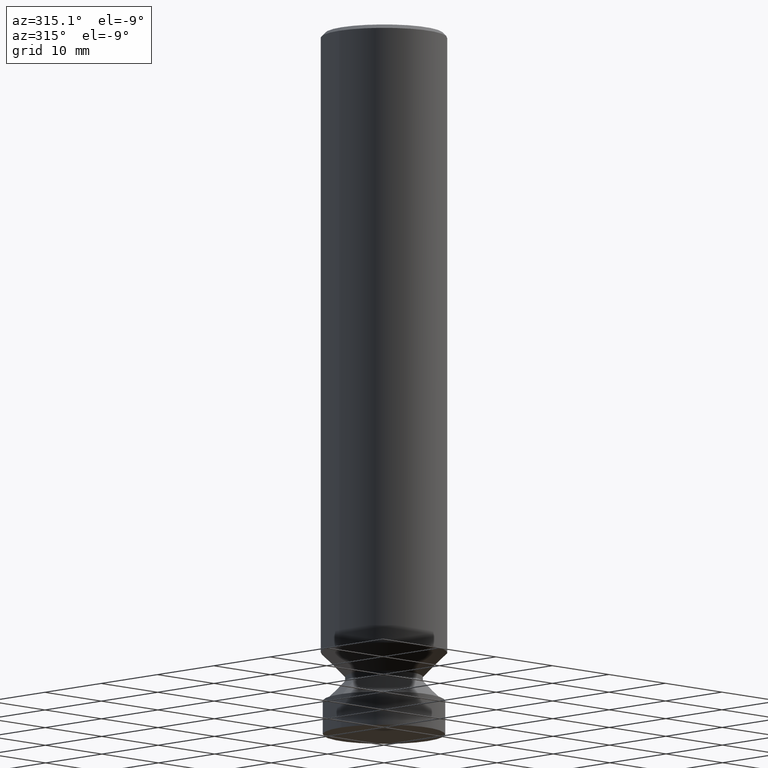
[diagram: clean part render]
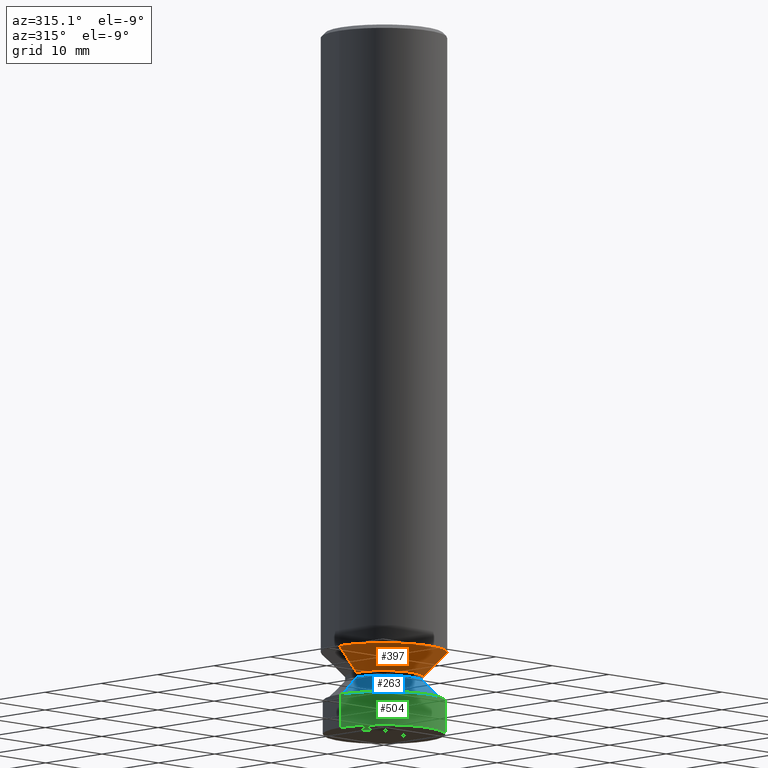
[diagram: same view with three faces highlighted in distinct colors, each labeled with its STEP entity id]
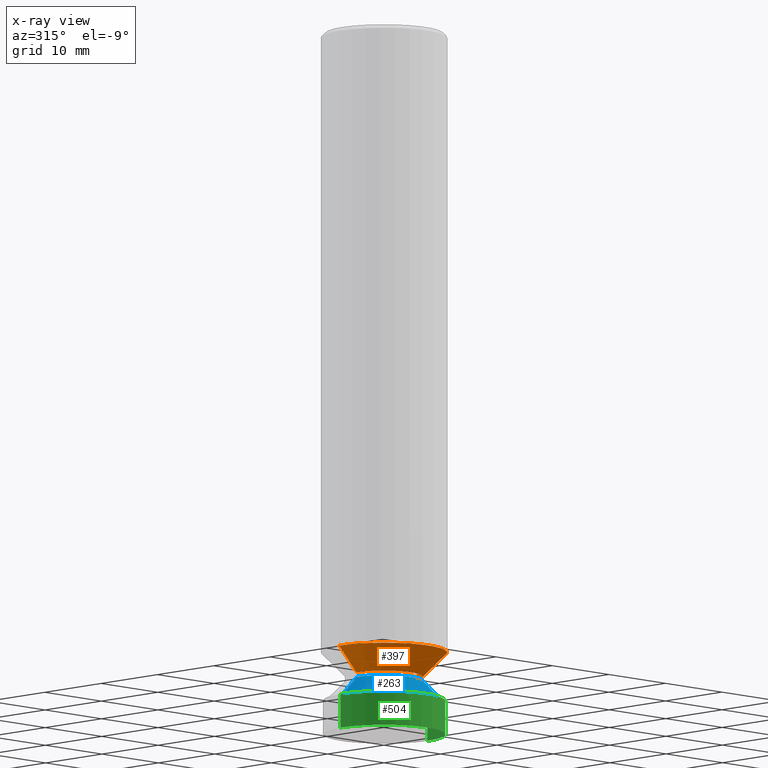
[diagram: x-ray of the same camera — body ghosted, the three highlighted faces saturated]
A machine part, auxiliary view with three faces highlighted in distinct colors.
The next image is the same camera in x-ray (body ghosted, the three faces saturated) — at least one of them is partly hidden behind the body in this view.
Their STEP definitions:

[orange] entity #397 — the highlighted conical surface has half-angle 45 deg.
#10 = LINE ( 'NONE', #708, #456 ) ;
#22 = VERTEX_POINT ( 'NONE', #438 ) ;
#45 = CARTESIAN_POINT ( 'NONE',  ( 7.855333339314627254E-29, -1.121533412948922282E-14, -3.212199362120970125 ) ) ;
#51 = CIRCLE ( 'NONE', #160, 0.3125000000000000000 ) ;
#89 = LINE ( 'NONE', #222, #681 ) ;
#121 = CARTESIAN_POINT ( 'NONE',  ( 0.1922500000000000042, -1.255780870427440876E-14, -3.212199362120970125 ) ) ;
#131 = CONICAL_SURFACE ( 'NONE', #197, 0.1922500000000000042, 0.7853981633974964627 ) ;
#160 = AXIS2_PLACEMENT_3D ( 'NONE', #528, #763, #192 ) ;
#192 = DIRECTION ( 'NONE',  ( 1.000000000000000000, -6.982962677686269077E-15, 0.000000000000000000 ) ) ;
#197 = AXIS2_PLACEMENT_3D ( 'NONE', #232, #631, #301 ) ;
#198 = ORIENTED_EDGE ( 'NONE', *, *, #706, .T. ) ;
#202 = ORIENTED_EDGE ( 'NONE', *, *, #814, .T. ) ;
#217 = VERTEX_POINT ( 'NONE', #570 ) ;
#222 = CARTESIAN_POINT ( 'NONE',  ( -0.1922500000000000042, -9.849315719990429988E-15, -3.212199362120970125 ) ) ;
#232 = CARTESIAN_POINT ( 'NONE',  ( 7.855333339314627254E-29, -1.121533412948922282E-14, -3.212199362120970125 ) ) ;
#255 = ORIENTED_EDGE ( 'NONE', *, *, #449, .F. ) ;
#284 = VERTEX_POINT ( 'NONE', #121 ) ;
#301 = DIRECTION ( 'NONE',  ( 1.000000000000000000, -6.982962677686265133E-15, 0.000000000000000000 ) ) ;
#303 = CIRCLE ( 'NONE', #485, 0.1922500000000000042 ) ;
#372 = EDGE_LOOP ( 'NONE', ( #443, #198, #202, #255 ) ) ;
#397 = ADVANCED_FACE ( 'NONE', ( #813 ), #131, .T. ) ;
#423 = CARTESIAN_POINT ( 'NONE',  ( -0.3125000000000000000, -8.575037449243061404E-15, -3.091949362120981704 ) ) ;
#438 = CARTESIAN_POINT ( 'NONE',  ( -0.1922500000000000042, -9.890340625721883836E-15, -3.212199362120970125 ) ) ;
#443 = ORIENTED_EDGE ( 'NONE', *, *, #554, .F. ) ;
#449 = EDGE_CURVE ( 'NONE', #705, #217, #51, .T. ) ;
#456 = VECTOR ( 'NONE', #698, 39.37007874015748143 ) ;
#485 = AXIS2_PLACEMENT_3D ( 'NONE', #45, #796, #505 ) ;
#505 = DIRECTION ( 'NONE',  ( 1.000000000000000000, -6.982962677686265133E-15, 0.000000000000000000 ) ) ;
#528 = CARTESIAN_POINT ( 'NONE',  ( 7.561265715370891456E-29, -1.079548349849337449E-14, -3.091949362120981704 ) ) ;
#554 = EDGE_CURVE ( 'NONE', #22, #705, #89, .T. ) ;
#570 = CARTESIAN_POINT ( 'NONE',  ( 0.3125000000000000000, -1.297765933527033441E-14, -3.091949362120981704 ) ) ;
#597 = DIRECTION ( 'NONE',  ( -0.7071067811865815456, 7.493145998870477222E-15, 0.7071067811865134889 ) ) ;
#631 = DIRECTION ( 'NONE',  ( -2.445468806185136597E-29, 3.491481338843145583E-15, 1.000000000000000000 ) ) ;
#681 = VECTOR ( 'NONE', #597, 39.37007874015748143 ) ;
#698 = DIRECTION ( 'NONE',  ( 0.7071067811865815456, -2.468850131082613626E-15, 0.7071067811865134889 ) ) ;
#705 = VERTEX_POINT ( 'NONE', #423 ) ;
#706 = EDGE_CURVE ( 'NONE', #22, #284, #303, .T. ) ;
#708 = CARTESIAN_POINT ( 'NONE',  ( 0.1922500000000000042, -1.255780870427440876E-14, -3.212199362120970125 ) ) ;
#763 = DIRECTION ( 'NONE',  ( -2.445468806185136597E-29, 3.491481338843145583E-15, 1.000000000000000000 ) ) ;
#796 = DIRECTION ( 'NONE',  ( -2.445468806185136597E-29, 3.491481338843145583E-15, 1.000000000000000000 ) ) ;
#813 = FACE_OUTER_BOUND ( 'NONE', #372, .T. ) ;
#814 = EDGE_CURVE ( 'NONE', #284, #217, #10, .T. ) ;

[blue] entity #263 — the highlighted conical surface has half-angle 45 deg.
#30 = CIRCLE ( 'NONE', #285, 0.2895506378790078106 ) ;
#47 = DIRECTION ( 'NONE',  ( -2.445468806185136597E-29, 3.491481338843145583E-15, 1.000000000000000000 ) ) ;
#67 = CARTESIAN_POINT ( 'NONE',  ( -0.1922499999999864595, -9.785047685460940438E-15, -3.235699362120996181 ) ) ;
#100 = DIRECTION ( 'NONE',  ( -1.000000000000000000, 6.982962677686268288E-15, 0.000000000000000000 ) ) ;
#236 = AXIS2_PLACEMENT_3D ( 'NONE', #432, #47, #746 ) ;
#241 = LINE ( 'NONE', #747, #682 ) ;
#263 = ADVANCED_FACE ( 'NONE', ( #500 ), #297, .T. ) ;
#271 = ORIENTED_EDGE ( 'NONE', *, *, #415, .F. ) ;
#274 = CARTESIAN_POINT ( 'NONE',  ( -0.2895506378790078106, -9.615186004754840058E-15, -3.332999999999999741 ) ) ;
#285 = AXIS2_PLACEMENT_3D ( 'NONE', #348, #287, #543 ) ;
#287 = DIRECTION ( 'NONE',  ( -2.445468806185136597E-29, 3.491481338843145583E-15, 1.000000000000000000 ) ) ;
#296 = ORIENTED_EDGE ( 'NONE', *, *, #349, .F. ) ;
#297 = CONICAL_SURFACE ( 'NONE', #477, 0.2895506378790078106, 0.7853981633975409826 ) ;
#316 = EDGE_CURVE ( 'NONE', #798, #560, #241, .T. ) ;
#348 = CARTESIAN_POINT ( 'NONE',  ( 8.150747531015059748E-29, -1.163710730236420348E-14, -3.332999999999999741 ) ) ;
#349 = EDGE_CURVE ( 'NONE', #798, #577, #381, .T. ) ;
#368 = VECTOR ( 'NONE', #563, 39.37007874015748143 ) ;
#381 = CIRCLE ( 'NONE', #236, 0.1922499999999864595 ) ;
#415 = EDGE_CURVE ( 'NONE', #577, #778, #635, .T. ) ;
#430 = CARTESIAN_POINT ( 'NONE',  ( 8.150747531015059748E-29, -1.163710730236420348E-14, -3.332999999999999741 ) ) ;
#432 = CARTESIAN_POINT ( 'NONE',  ( 7.912801856260040491E-29, -1.129738394095212894E-14, -3.235699362120996181 ) ) ;
#435 = DIRECTION ( 'NONE',  ( -0.7071067811866130759, 2.468850131082943764E-15, -0.7071067811864819586 ) ) ;
#477 = AXIS2_PLACEMENT_3D ( 'NONE', #430, #739, #100 ) ;
#484 = CARTESIAN_POINT ( 'NONE',  ( 0.1922499999999864595, -1.311994177740510795E-14, -3.235699362120996181 ) ) ;
#500 = FACE_OUTER_BOUND ( 'NONE', #562, .T. ) ;
#524 = CARTESIAN_POINT ( 'NONE',  ( 0.2895506378790078106, -1.362356887378660573E-14, -3.332999999999999741 ) ) ;
#543 = DIRECTION ( 'NONE',  ( 1.000000000000000000, -6.982962677686268288E-15, 0.000000000000000000 ) ) ;
#560 = VERTEX_POINT ( 'NONE', #274 ) ;
#562 = EDGE_LOOP ( 'NONE', ( #271, #296, #770, #656 ) ) ;
#563 = DIRECTION ( 'NONE',  ( 0.7071067811866130759, -7.319954787623476926E-15, -0.7071067811864819586 ) ) ;
#574 = EDGE_CURVE ( 'NONE', #560, #778, #30, .T. ) ;
#577 = VERTEX_POINT ( 'NONE', #484 ) ;
#635 = LINE ( 'NONE', #809, #368 ) ;
#656 = ORIENTED_EDGE ( 'NONE', *, *, #574, .T. ) ;
#682 = VECTOR ( 'NONE', #435, 39.37007874015748143 ) ;
#739 = DIRECTION ( 'NONE',  ( 2.445468806185136597E-29, -3.491481338843145583E-15, -1.000000000000000000 ) ) ;
#746 = DIRECTION ( 'NONE',  ( 1.000000000000000000, -6.982962677686262766E-15, 0.000000000000000000 ) ) ;
#747 = CARTESIAN_POINT ( 'NONE',  ( -0.2895506378790078106, -9.615186004754840058E-15, -3.332999999999999741 ) ) ;
#770 = ORIENTED_EDGE ( 'NONE', *, *, #316, .T. ) ;
#778 = VERTEX_POINT ( 'NONE', #524 ) ;
#798 = VERTEX_POINT ( 'NONE', #67 ) ;
#809 = CARTESIAN_POINT ( 'NONE',  ( 0.2895506378790078106, -1.362356887378660573E-14, -3.332999999999999741 ) ) ;

[green] entity #504 — the highlighted cylindrical surface (partial cylindrical patch) has radius 7.6835 mm, axis along (-0, 0, 1).
#1 = LINE ( 'NONE', #268, #607 ) ;
#59 = VERTEX_POINT ( 'NONE', #126 ) ;
#66 = CYLINDRICAL_SURFACE ( 'NONE', #299, 0.3025000000000002132 ) ;
#77 = ORIENTED_EDGE ( 'NONE', *, *, #273, .T. ) ;
#124 = VERTEX_POINT ( 'NONE', #195 ) ;
#126 = CARTESIAN_POINT ( 'NONE',  ( -0.3024999999999999911, -9.779254218483268704E-15, -3.332999999999999741 ) ) ;
#135 = DIRECTION ( 'NONE',  ( 1.000000000000000000, -6.982962677686265922E-15, 4.876176775795935232E-29 ) ) ;
#138 = CIRCLE ( 'NONE', #648, 0.3024999999999999911 ) ;
#156 = VECTOR ( 'NONE', #694, 39.37007874015748143 ) ;
#195 = CARTESIAN_POINT ( 'NONE',  ( 0.3025000000000004352, -1.433253089595104128E-14, -3.499999999999980016 ) ) ;
#211 = VERTEX_POINT ( 'NONE', #615 ) ;
#253 = DIRECTION ( 'NONE',  ( -2.445468806185136597E-29, 3.491481338843145583E-15, 1.000000000000000000 ) ) ;
#268 = CARTESIAN_POINT ( 'NONE',  ( -0.3025000000000002132, 2.149391775674304577E-15, -1.487977864802109852E-29 ) ) ;
#273 = EDGE_CURVE ( 'NONE', #124, #695, #358, .T. ) ;
#299 = AXIS2_PLACEMENT_3D ( 'NONE', #458, #253, #135 ) ;
#358 = LINE ( 'NONE', #371, #156 ) ;
#371 = CARTESIAN_POINT ( 'NONE',  ( 0.3025000000000002132, -2.112346210000097021E-15, 1.475043474678271390E-29 ) ) ;
#442 = DIRECTION ( 'NONE',  ( -2.445468806185136877E-29, 3.491481338843145188E-15, 1.000000000000000000 ) ) ;
#448 = EDGE_LOOP ( 'NONE', ( #509, #590, #77, #517 ) ) ;
#458 = CARTESIAN_POINT ( 'NONE',  ( 0.000000000000000000, 0.000000000000000000, 0.000000000000000000 ) ) ;
#460 = EDGE_CURVE ( 'NONE', #211, #124, #632, .T. ) ;
#504 = ADVANCED_FACE ( 'NONE', ( #589 ), #66, .T. ) ;
#509 = ORIENTED_EDGE ( 'NONE', *, *, #730, .F. ) ;
#517 = ORIENTED_EDGE ( 'NONE', *, *, #564, .F. ) ;
#564 = EDGE_CURVE ( 'NONE', #59, #695, #138, .T. ) ;
#583 = CARTESIAN_POINT ( 'NONE',  ( 8.559140821647929884E-29, -1.222018468595094150E-14, -3.499999999999980016 ) ) ;
#589 = FACE_OUTER_BOUND ( 'NONE', #448, .T. ) ;
#590 = ORIENTED_EDGE ( 'NONE', *, *, #460, .T. ) ;
#607 = VECTOR ( 'NONE', #442, 39.37007874015748143 ) ;
#615 = CARTESIAN_POINT ( 'NONE',  ( -0.3025000000000004352, -9.779254218483265549E-15, -3.499999999999980016 ) ) ;
#632 = CIRCLE ( 'NONE', #700, 0.3025000000000004352 ) ;
#646 = DIRECTION ( 'NONE',  ( 1.000000000000000000, -6.982962677686269866E-15, 0.000000000000000000 ) ) ;
#648 = AXIS2_PLACEMENT_3D ( 'NONE', #734, #719, #665 ) ;
#665 = DIRECTION ( 'NONE',  ( 1.000000000000000000, -6.982962677686267499E-15, 0.000000000000000000 ) ) ;
#694 = DIRECTION ( 'NONE',  ( -2.445468806185136877E-29, 3.491481338843145188E-15, 1.000000000000000000 ) ) ;
#695 = VERTEX_POINT ( 'NONE', #811 ) ;
#700 = AXIS2_PLACEMENT_3D ( 'NONE', #583, #820, #646 ) ;
#719 = DIRECTION ( 'NONE',  ( -2.445468806185136597E-29, 3.491481338843145583E-15, 1.000000000000000000 ) ) ;
#730 = EDGE_CURVE ( 'NONE', #211, #59, #1, .T. ) ;
#734 = CARTESIAN_POINT ( 'NONE',  ( 8.150747531015059748E-29, -1.163710730236420348E-14, -3.332999999999999741 ) ) ;
#811 = CARTESIAN_POINT ( 'NONE',  ( 0.3024999999999999911, -1.374945351236429853E-14, -3.332999999999999741 ) ) ;
#820 = DIRECTION ( 'NONE',  ( -2.445468806185136597E-29, 3.491481338843145583E-15, 1.000000000000000000 ) ) ;